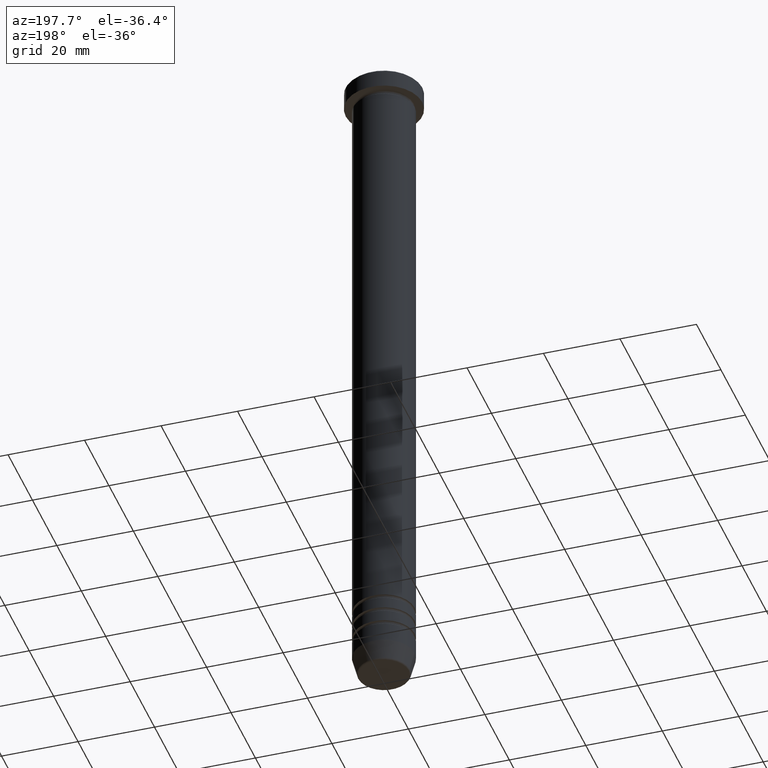
[diagram: clean part render]
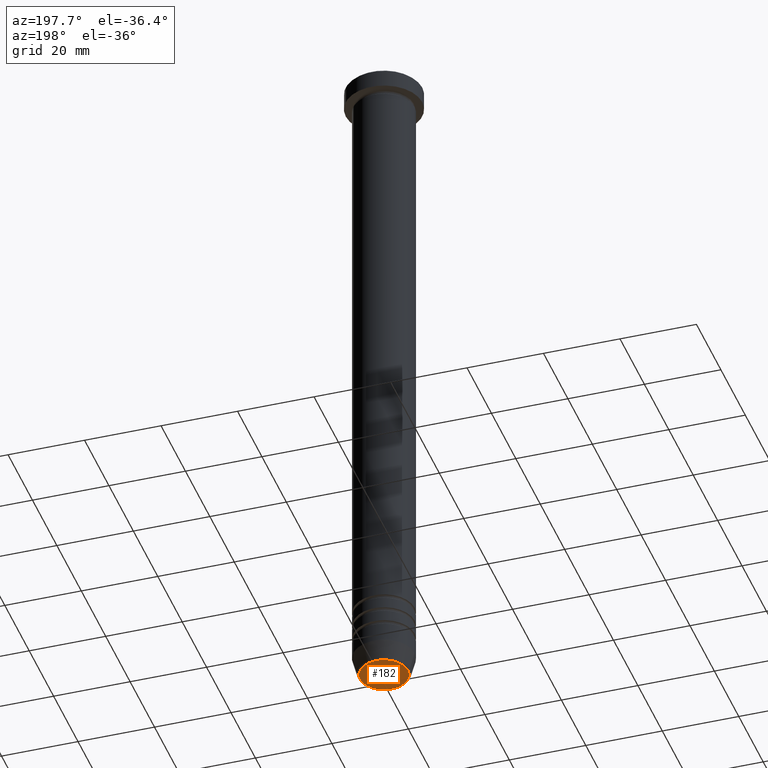
[diagram: same view with one face highlighted and labeled with its STEP entity id]
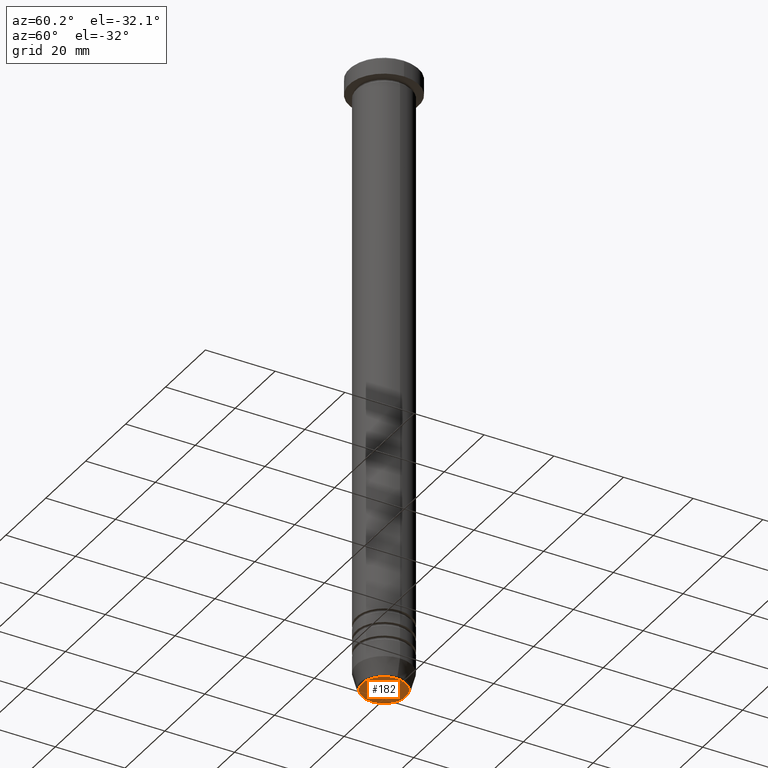
[diagram: same view with one face highlighted and labeled with its STEP entity id]
A machine part, auxiliary view. The second image highlights one B-rep face of the part: STEP entity #182.
A second angle (auxiliary view) of the same face is appended — the face is thin or edge-on in the first view.
In plain terms, the highlighted planar face has unit normal (0, -0, 1).
Its self-contained STEP definition (entity closure, byte-faithful):
#70 = AXIS2_PLACEMENT_3D ( 'NONE', #1054, #868, #160 ) ;
#86 = AXIS2_PLACEMENT_3D ( 'NONE', #682, #345, #209 ) ;
#89 = CIRCLE ( 'NONE', #70, 6.276590543854911886 ) ;
#93 = FACE_OUTER_BOUND ( 'NONE', #477, .T. ) ;
#160 = DIRECTION ( 'NONE',  ( 1.000000000000000000, 0.000000000000000000, 0.000000000000000000 ) ) ;
#182 = ADVANCED_FACE ( 'NONE', ( #93 ), #661, .F. ) ;
#187 = CARTESIAN_POINT ( 'NONE',  ( 0.000000000000000000, 1.592040838891559450E-14, -180.0000000000000000 ) ) ;
#209 = DIRECTION ( 'NONE',  ( 1.000000000000000000, 0.000000000000000000, 0.000000000000000000 ) ) ;
#264 = CARTESIAN_POINT ( 'NONE',  ( -6.276590543854911886, 7.982336011935132188E-16, -180.0000000000000000 ) ) ;
#341 = EDGE_CURVE ( 'NONE', #962, #632, #89, .T. ) ;
#345 = DIRECTION ( 'NONE',  ( 0.000000000000000000, 0.000000000000000000, -1.000000000000000000 ) ) ;
#373 = CARTESIAN_POINT ( 'NONE',  ( 6.276590543854911886, 0.000000000000000000, -180.0000000000000000 ) ) ;
#477 = EDGE_LOOP ( 'NONE', ( #777, #1001 ) ) ;
#522 = CIRCLE ( 'NONE', #86, 6.276590543854911886 ) ;
#632 = VERTEX_POINT ( 'NONE', #264 ) ;
#661 = PLANE ( 'NONE',  #989 ) ;
#682 = CARTESIAN_POINT ( 'NONE',  ( 0.000000000000000000, 0.000000000000000000, -180.0000000000000000 ) ) ;
#709 = EDGE_CURVE ( 'NONE', #632, #962, #522, .T. ) ;
#777 = ORIENTED_EDGE ( 'NONE', *, *, #341, .T. ) ;
#868 = DIRECTION ( 'NONE',  ( 0.000000000000000000, 0.000000000000000000, -1.000000000000000000 ) ) ;
#962 = VERTEX_POINT ( 'NONE', #373 ) ;
#980 = DIRECTION ( 'NONE',  ( 0.000000000000000000, -0.000000000000000000, 1.000000000000000000 ) ) ;
#989 = AXIS2_PLACEMENT_3D ( 'NONE', #187, #980, #996 ) ;
#996 = DIRECTION ( 'NONE',  ( 1.000000000000000000, 0.000000000000000000, 0.000000000000000000 ) ) ;
#1001 = ORIENTED_EDGE ( 'NONE', *, *, #709, .T. ) ;
#1054 = CARTESIAN_POINT ( 'NONE',  ( 0.000000000000000000, 0.000000000000000000, -180.0000000000000000 ) ) ;